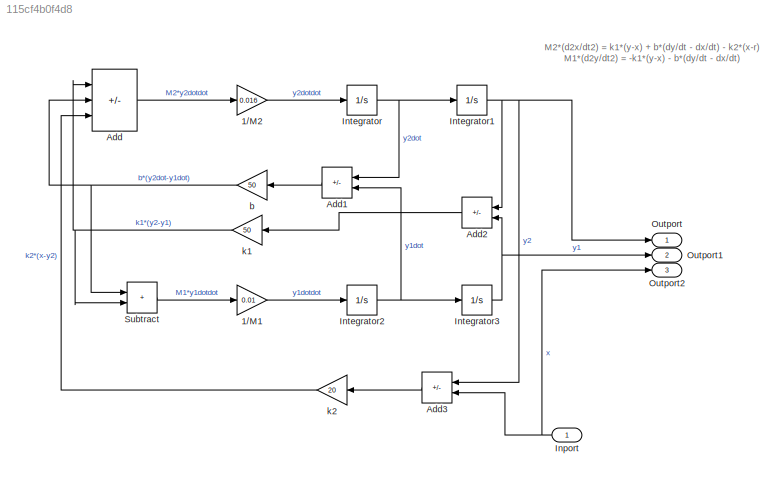
MODEL slx_115cf4b0f4d8
KIND model
CONFIG AbsTol = auto
CONFIG EnableMultiTasking = off
CONFIG FixedStep = auto
CONFIG MaxStep = auto
CONFIG MinStep = auto
CONFIG RelTol = 1e-3
CONFIG SampleTimeConstraint = Unconstrained
CONFIG SolverName = VariableStepAuto
CONFIG StartTime = 0.0
CONFIG StopTime = 10.0
BLOCK [Gain] 1//M1
  Gain = 0.01
BLOCK [Gain] 1//M2
  Gain = 0.016
BLOCK [Sum] Add
  IconShape = rectangular
  Inputs = --+
  Ports = [3, 1]
BLOCK [Sum] Add1
  IconShape = rectangular
  Inputs = +-
  Ports = [2, 1]
BLOCK [Sum] Add2
  IconShape = rectangular
  Inputs = +-
  Ports = [2, 1]
BLOCK [Sum] Add3
  IconShape = rectangular
  Inputs = -+
  Ports = [2, 1]
BLOCK [Inport] Inport
  NameLocation = top
BLOCK [Integrator] Integrator
  Ports = [1, 1]
BLOCK [Integrator] Integrator1
  Ports = [1, 1]
BLOCK [Integrator] Integrator2
  Ports = [1, 1]
BLOCK [Integrator] Integrator3
  Ports = [1, 1]
BLOCK [Outport] Outport
BLOCK [Outport] Outport1
  Port = 2
BLOCK [Outport] Outport2
  Port = 3
BLOCK [Sum] Subtract
  IconShape = rectangular
  Ports = [2, 1]
BLOCK [Gain] b
  Gain = 50
BLOCK [Gain] k1
  Gain = 50
BLOCK [Gain] k2
  Gain = 20
ANNOTATION (root): M2*(d2x/dt2) = k1*(y-x) + b*(dy/dt - dx/dt) - k2*(x-r) M1*(d2y/dt2) = -k1*(y-x) - b*(dy/dt - dx/dt)
LINE 1//M1:1 -> Integrator2:1
LINE 1//M2:1 -> Integrator:1
LINE Add1:1 -> b:1
LINE Add2:1 -> k1:1
LINE Add3:1 -> k2:1
LINE Add:1 -> 1//M2:1
NET Inport:1 -> Add3:2, Outport2:1
NET Integrator1:1 -> Add2:1, Add3:1, Outport:1
NET Integrator2:1 -> Add1:2, Integrator3:1
NET Integrator3:1 -> Add2:2, Outport1:1
NET Integrator:1 -> Add1:1, Integrator1:1
LINE Subtract:1 -> 1//M1:1
NET b:1 -> Add:2, Subtract:1
NET k1:1 -> Add:1, Subtract:2
LINE k2:1 -> Add:3
note: NET lines group one-source signal fan-out (src -> all destinations, sorted); 1:1 wires keep LINE
